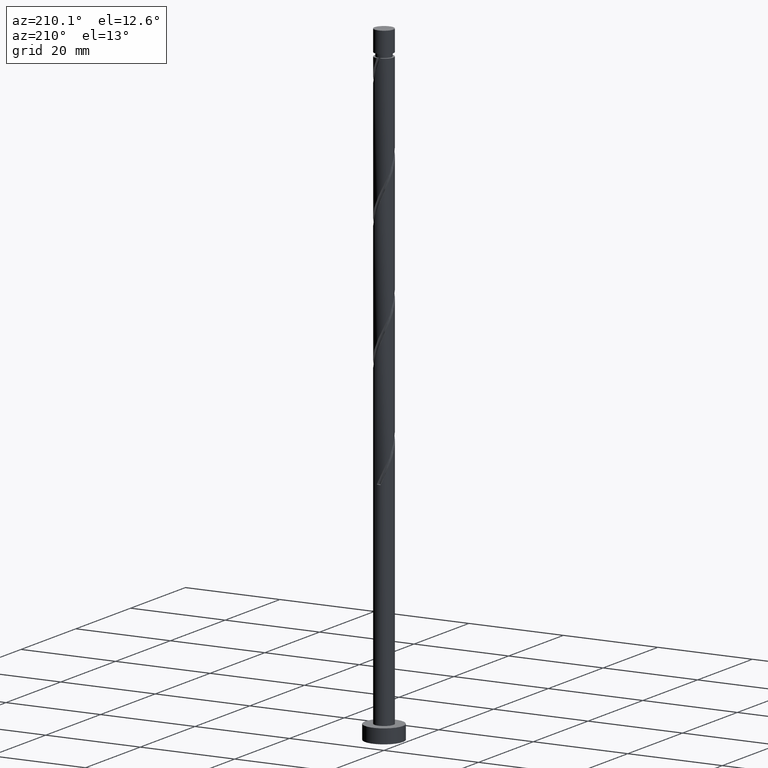
[diagram: clean part render]
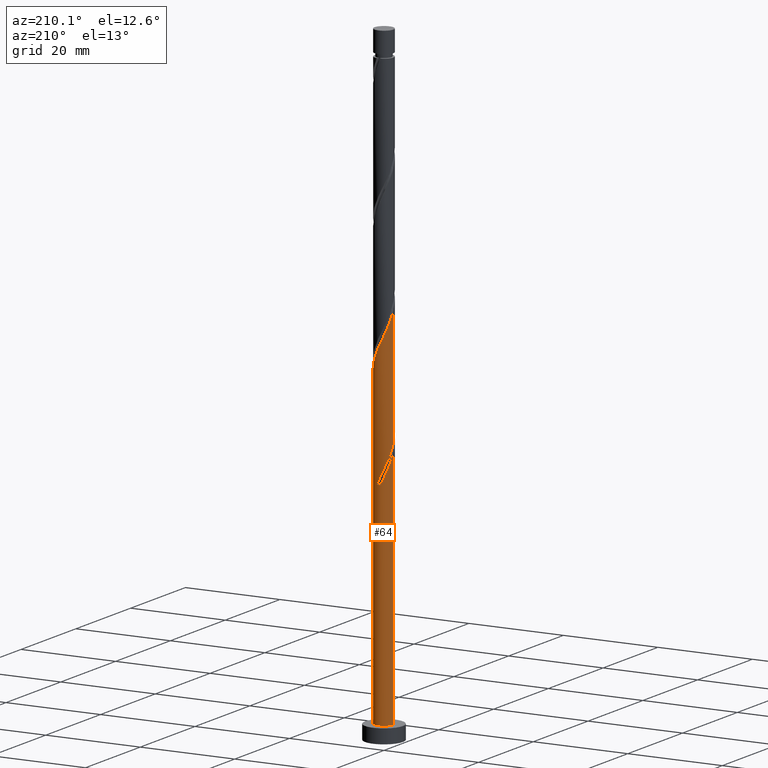
[diagram: same view with one face highlighted and labeled with its STEP entity id]
A machine part, auxiliary view. The second image highlights one B-rep face of the part: STEP entity #64.
In plain terms, the highlighted cylindrical surface (edge-blend (fillet) strip) has radius 2 mm, axis along (-0, -0, -1).
Its self-contained STEP definition (entity closure, byte-faithful):
#11 = EDGE_CURVE ( 'NONE', #1559, #1122, #277, .T. ) ;
#22 = CARTESIAN_POINT ( 'NONE',  ( -2.000000000000000000, 0.000000000000000000, 133.4499999999999886 ) ) ;
#27 = LINE ( 'NONE', #553, #57 ) ;
#46 = CARTESIAN_POINT ( 'NONE',  ( 1.883409435608319527, 0.6728810428757547868, 68.82072663073276431 ) ) ;
#57 = VECTOR ( 'NONE', #520, 1000.000000000000000 ) ;
#60 = CARTESIAN_POINT ( 'NONE',  ( -0.1161895186125001117, 2.017223038501450461, 74.27527208527821756 ) ) ;
#64 = ADVANCED_FACE ( 'NONE', ( #1151 ), #157, .T. ) ;
#67 = VERTEX_POINT ( 'NONE', #287 ) ;
#77 = CARTESIAN_POINT ( 'NONE',  ( -2.000000000000002665, -1.376027504721667048E-15, 80.69854487870459536 ) ) ;
#82 = VECTOR ( 'NONE', #288, 1000.000000000000000 ) ;
#97 = CARTESIAN_POINT ( 'NONE',  ( -1.948211798543802997, 0.4521844623765087778, 53.06315087315700652 ) ) ;
#102 = ORIENTED_EDGE ( 'NONE', *, *, #1654, .F. ) ;
#124 = VERTEX_POINT ( 'NONE', #77 ) ;
#134 = DIRECTION ( 'NONE',  ( -0.000000000000000000, -0.000000000000000000, -1.000000000000000000 ) ) ;
#156 = CARTESIAN_POINT ( 'NONE',  ( 0.000000000000000000, 0.000000000000000000, 48.21466602467216944 ) ) ;
#157 = CYLINDRICAL_SURFACE ( 'NONE', #1231, 2.000000000000000000 ) ;
#175 = CARTESIAN_POINT ( 'NONE',  ( 0.1161895186125005419, 2.017223038501447796, 48.82072663073276431 ) ) ;
#209 =( BOUNDED_CURVE ( )  B_SPLINE_CURVE ( 2, ( #753, #629, #1141, #622, #1657, #1635, #964, #593, #97, #602, #487 ),
 .UNSPECIFIED., .F., .T. ) 
 B_SPLINE_CURVE_WITH_KNOTS ( ( 3, 2, 2, 2, 2, 3 ),
 ( 0.000000000000000000, 0.01136363636363635181, 0.02272727272727270362, 0.03409090909090906063, 0.04545454545454540723, 0.05452521624175108578 ),
 .UNSPECIFIED. ) 
 CURVE ( )  GEOMETRIC_REPRESENTATION_ITEM ( )  RATIONAL_B_SPLINE_CURVE ( ( 0.9090909090909219392, 0.8998376744372241776, 0.9090909090909219392, 0.8998376744372241776, 0.9090909090909219392, 0.8998376744372241776, 0.9090909090909219392, 0.8998376744372241776, 0.9090909090909219392, 0.9017048011080018854, 0.9061101570135620120 ) ) 
 REPRESENTATION_ITEM ( '' )  );
#277 = LINE ( 'NONE', #530, #557 ) ;
#287 = CARTESIAN_POINT ( 'NONE',  ( -0.3979949748426480083, 1.960000000000002185, 48.21466602467215523 ) ) ;
#288 = DIRECTION ( 'NONE',  ( -0.000000000000000000, -0.000000000000000000, -1.000000000000000000 ) ) ;
#297 = CARTESIAN_POINT ( 'NONE',  ( -0.9928482695149674075, 1.759812803970227879, 51.24496905497519350 ) ) ;
#322 = CARTESIAN_POINT ( 'NONE',  ( -1.188337955536408641, 1.634179211325360814, 76.69951450952059702 ) ) ;
#340 = EDGE_LOOP ( 'NONE', ( #102, #1246, #572, #402, #844, #1641, #887, #1396 ) ) ;
#347 = DIRECTION ( 'NONE',  ( 1.000000000000000000, 0.000000000000000000, 0.000000000000000000 ) ) ;
#382 =( BOUNDED_CURVE ( )  B_SPLINE_CURVE ( 2, ( #1055, #432, #677, #934, #46, #699, #690, #1195, #939, #829, #567, #1347, #1465, #60, #1079, #445, #1469, #322, #820, #1575, #453, #953, #1479, #422, #1490 ),
 .UNSPECIFIED., .F., .T. ) 
 B_SPLINE_CURVE_WITH_KNOTS ( ( 3, 2, 2, 2, 2, 2, 2, 2, 2, 2, 2, 2, 3 ),
 ( 0.1795252162417512731, 0.1818181818181817677, 0.1931818181818182323, 0.2045454545454545858, 0.2159090909090909394, 0.2272727272727272929, 0.2386363636363636465, 0.2500000000000000000, 0.2613636363636363535, 0.2727272727272727071, 0.2840909090909090606, 0.2954545454545454142, 0.3045252162417513841 ),
 .UNSPECIFIED. ) 
 CURVE ( )  GEOMETRIC_REPRESENTATION_ITEM ( )  RATIONAL_B_SPLINE_CURVE ( ( 0.9061101570135622341, 0.9072237824201444534, 0.9090909090909219392, 0.8998376744372241776, 0.9090909090909219392, 0.8998376744372241776, 0.9090909090909219392, 0.8998376744372241776, 0.9090909090909219392, 0.8998376744372241776, 0.9090909090909219392, 0.8998376744372241776, 0.9090909090909219392, 0.8998376744372241776, 0.9090909090909219392, 0.8998376744372241776, 0.9090909090909219392, 0.8998376744372241776, 0.9090909090909219392, 0.8998376744372241776, 0.9090909090909219392, 0.8998376744372241776, 0.9090909090909219392, 0.9017048011080015524, 0.9061101570135623451 ) ) 
 REPRESENTATION_ITEM ( '' )  );
#402 = ORIENTED_EDGE ( 'NONE', *, *, #436, .F. ) ;
#405 = CARTESIAN_POINT ( 'NONE',  ( -1.220637884402354434, 1.584311571365224047, 51.85102966103578837 ) ) ;
#417 = CARTESIAN_POINT ( 'NONE',  ( -2.000000000000000000, 0.000000000000000000, 3.000000000000000000 ) ) ;
#422 = CARTESIAN_POINT ( 'NONE',  ( -2.000000000000003997, 0.2290578547702441514, 80.21258492573329590 ) ) ;
#432 = CARTESIAN_POINT ( 'NONE',  ( 2.000000000000002665, 0.05755105304764401158, 67.48730955008946353 ) ) ;
#436 = EDGE_CURVE ( 'NONE', #451, #866, #27, .T. ) ;
#445 = CARTESIAN_POINT ( 'NONE',  ( -0.6798004310727967514, 1.902776961498554353, 75.48739329739940729 ) ) ;
#451 = VERTEX_POINT ( 'NONE', #1332 ) ;
#453 = CARTESIAN_POINT ( 'NONE',  ( -1.741900447066340618, 0.9827425057002951991, 78.51769632770246687 ) ) ;
#462 = CIRCLE ( 'NONE', #565, 2.000000000000000000 ) ;
#487 = CARTESIAN_POINT ( 'NONE',  ( -2.000000000000002665, 9.789239150438384053E-15, 54.03187821203790264 ) ) ;
#498 = DIRECTION ( 'NONE',  ( 0.000000000000000000, 0.000000000000000000, 1.000000000000000000 ) ) ;
#520 = DIRECTION ( 'NONE',  ( -0.000000000000000000, -0.000000000000000000, -1.000000000000000000 ) ) ;
#530 = CARTESIAN_POINT ( 'NONE',  ( 2.000000000000000000, 2.449293598294706414E-16, 133.4499999999999886 ) ) ;
#539 = VERTEX_POINT ( 'NONE', #908 ) ;
#549 = CARTESIAN_POINT ( 'NONE',  ( 2.000000000000002665, 1.278808170148940589E-15, 67.36521154537125256 ) ) ;
#553 = CARTESIAN_POINT ( 'NONE',  ( -2.000000000000000000, 0.000000000000000000, 133.4499999999999886 ) ) ;
#557 = VECTOR ( 'NONE', #134, 1000.000000000000000 ) ;
#565 = AXIS2_PLACEMENT_3D ( 'NONE', #1135, #498, #347 ) ;
#567 = CARTESIAN_POINT ( 'NONE',  ( 0.7248413235775371666, 1.864029252891267197, 72.45709026709639033 ) ) ;
#572 = ORIENTED_EDGE ( 'NONE', *, *, #1303, .T. ) ;
#593 = CARTESIAN_POINT ( 'NONE',  ( -1.883197487972274153, 0.7322950311120157707, 52.45709026709639033 ) ) ;
#602 = CARTESIAN_POINT ( 'NONE',  ( -2.000000000000002220, 0.2290578547702515066, 53.54591825906661029 ) ) ;
#622 = CARTESIAN_POINT ( 'NONE',  ( -1.188337955536408641, 1.634179211325360814, 50.03284784285396825 ) ) ;
#629 = CARTESIAN_POINT ( 'NONE',  ( -0.6798004310727967514, 1.902776961498554353, 48.82072663073275720 ) ) ;
#646 = CARTESIAN_POINT ( 'NONE',  ( -0.1703224295138024702, 1.992734370156875157, 49.42678723679335917 ) ) ;
#659 = DIRECTION ( 'NONE',  ( 0.000000000000000000, -0.000000000000000000, -1.000000000000000000 ) ) ;
#677 = CARTESIAN_POINT ( 'NONE',  ( 1.996690616564942733, 0.1150068768444765244, 67.60860541861153195 ) ) ;
#690 = CARTESIAN_POINT ( 'NONE',  ( 1.617545623245914443, 1.176242388590887700, 70.03284784285398246 ) ) ;
#699 = CARTESIAN_POINT ( 'NONE',  ( 1.786663747202085206, 0.9436744384215541848, 69.42678723679337338 ) ) ;
#753 = CARTESIAN_POINT ( 'NONE',  ( -0.3979949748426480083, 1.960000000000002185, 48.21466602467215523 ) ) ;
#778 = CARTESIAN_POINT ( 'NONE',  ( 0.3979949748426487299, 1.959999999999999964, 48.21466602467215523 ) ) ;
#799 = CARTESIAN_POINT ( 'NONE',  ( -1.786663747202082320, 0.9436744384215540737, 53.66921147921762980 ) ) ;
#820 = CARTESIAN_POINT ( 'NONE',  ( -1.394470680848407307, 1.433684595806968165, 77.30557511558124872 ) ) ;
#829 = CARTESIAN_POINT ( 'NONE',  ( 0.9928482695149681847, 1.759812803970230322, 71.85102966103578126 ) ) ;
#844 = ORIENTED_EDGE ( 'NONE', *, *, #1430, .F. ) ;
#866 = VERTEX_POINT ( 'NONE', #417 ) ;
#887 = ORIENTED_EDGE ( 'NONE', *, *, #1000, .F. ) ;
#908 = CARTESIAN_POINT ( 'NONE',  ( -2.000000000000000000, -3.694334713763628715E-15, 55.73078717063971510 ) ) ;
#912 = CARTESIAN_POINT ( 'NONE',  ( -0.4568343776401055933, 1.968245701812301407, 50.03284784285395403 ) ) ;
#921 = CARTESIAN_POINT ( 'NONE',  ( -1.617545623245911779, 1.176242388590887256, 53.06315087315700652 ) ) ;
#934 = CARTESIAN_POINT ( 'NONE',  ( 1.980155124014553403, 0.4020876473299550558, 68.21466602467214102 ) ) ;
#939 = CARTESIAN_POINT ( 'NONE',  ( 1.220637884402355988, 1.584311571365226046, 71.24496905497520061 ) ) ;
#953 = CARTESIAN_POINT ( 'NONE',  ( -1.883197487972274153, 0.7322950311120157707, 79.12375693376307595 ) ) ;
#964 = CARTESIAN_POINT ( 'NONE',  ( -1.741900447066340618, 0.9827425057002951991, 51.85102966103579547 ) ) ;
#1000 = EDGE_CURVE ( 'NONE', #539, #1069, #1240, .T. ) ;
#1022 = DIRECTION ( 'NONE',  ( -0.000000000000000000, -0.000000000000000000, -1.000000000000000000 ) ) ;
#1033 = CARTESIAN_POINT ( 'NONE',  ( -0.7248413235775362784, 1.864029252891264310, 50.63890844891457732 ) ) ;
#1055 = CARTESIAN_POINT ( 'NONE',  ( 2.000000000000002665, 1.278808170148940786E-15, 67.36521154537125256 ) ) ;
#1069 = VERTEX_POINT ( 'NONE', #778 ) ;
#1076 = EDGE_CURVE ( 'NONE', #124, #539, #1170, .T. ) ;
#1078 = CARTESIAN_POINT ( 'NONE',  ( 2.000000000000000000, 2.449293598294706414E-16, 3.000000000000000000 ) ) ;
#1079 = CARTESIAN_POINT ( 'NONE',  ( -0.3979949748426481193, 1.960000000000002851, 74.88133269133881242 ) ) ;
#1098 = CIRCLE ( 'NONE', #1538, 2.000000000000000000 ) ;
#1122 = VERTEX_POINT ( 'NONE', #1078 ) ;
#1135 = CARTESIAN_POINT ( 'NONE',  ( 0.000000000000000000, 0.000000000000000000, 3.000000000000000000 ) ) ;
#1141 = CARTESIAN_POINT ( 'NONE',  ( -0.9340691933046029183, 1.768478086411957806, 49.42678723679337338 ) ) ;
#1151 = FACE_OUTER_BOUND ( 'NONE', #340, .T. ) ;
#1170 = LINE ( 'NONE', #22, #82 ) ;
#1175 = DIRECTION ( 'NONE',  ( -1.000000000000000000, 0.000000000000000000, 0.000000000000000000 ) ) ;
#1195 = CARTESIAN_POINT ( 'NONE',  ( 1.448427499289744569, 1.408810338760220437, 70.63890844891454890 ) ) ;
#1231 = AXIS2_PLACEMENT_3D ( 'NONE', #1295, #1022, #1282 ) ;
#1240 =( BOUNDED_CURVE ( )  B_SPLINE_CURVE ( 2, ( #1579, #1443, #1450, #1418, #1572, #799, #921, #1325, #405, #297, #1033, #912, #646, #175, #1296 ),
 .UNSPECIFIED., .F., .T. ) 
 B_SPLINE_CURVE_WITH_KNOTS ( ( 3, 2, 2, 2, 2, 2, 2, 3 ),
 ( 0.9295252162417512176, 0.9318181818181817677, 0.9431818181818182323, 0.9545454545454545858, 0.9659090909090909394, 0.9772727272727272929, 0.9886363636363636465, 1.000000000000000000 ),
 .UNSPECIFIED. ) 
 CURVE ( )  GEOMETRIC_REPRESENTATION_ITEM ( )  RATIONAL_B_SPLINE_CURVE ( ( 0.9061101570135567940, 0.9072237824201390133, 0.9090909090909164991, 0.8998376744372188485, 0.9090909090909164991, 0.8998376744372188485, 0.9090909090909164991, 0.8998376744372188485, 0.9090909090909164991, 0.8998376744372188485, 0.9090909090909164991, 0.8998376744372188485, 0.9090909090909164991, 0.8998376744372188485, 0.9090909090909164991 ) ) 
 REPRESENTATION_ITEM ( '' )  );
#1246 = ORIENTED_EDGE ( 'NONE', *, *, #11, .T. ) ;
#1282 = DIRECTION ( 'NONE',  ( -1.000000000000000000, 0.000000000000000000, 0.000000000000000000 ) ) ;
#1295 = CARTESIAN_POINT ( 'NONE',  ( 0.000000000000000000, 0.000000000000000000, 133.4499999999999886 ) ) ;
#1296 = CARTESIAN_POINT ( 'NONE',  ( 0.3979949748426487299, 1.959999999999999964, 48.21466602467215523 ) ) ;
#1303 = EDGE_CURVE ( 'NONE', #1122, #866, #462, .T. ) ;
#1325 = CARTESIAN_POINT ( 'NONE',  ( -1.448427499289741460, 1.408810338760219993, 52.45709026709639744 ) ) ;
#1332 = CARTESIAN_POINT ( 'NONE',  ( -2.000000000000002665, 9.789239150438384053E-15, 54.03187821203790264 ) ) ;
#1347 = CARTESIAN_POINT ( 'NONE',  ( 0.4568343776401065925, 1.968245701812303405, 73.06315087315699941 ) ) ;
#1396 = ORIENTED_EDGE ( 'NONE', *, *, #1076, .F. ) ;
#1418 = CARTESIAN_POINT ( 'NONE',  ( -1.980155124014551182, 0.4020876473299552778, 54.88133269133882663 ) ) ;
#1430 = EDGE_CURVE ( 'NONE', #67, #451, #209, .T. ) ;
#1443 = CARTESIAN_POINT ( 'NONE',  ( -2.000000000000000000, 0.05755105304764320667, 55.60868916592149702 ) ) ;
#1450 = CARTESIAN_POINT ( 'NONE',  ( -1.996690616564939846, 0.1150068768444770934, 55.48739329739943571 ) ) ;
#1465 = CARTESIAN_POINT ( 'NONE',  ( 0.1703224295138031641, 1.992734370156877821, 73.66921147921760848 ) ) ;
#1469 = CARTESIAN_POINT ( 'NONE',  ( -0.9340691933046029183, 1.768478086411957806, 76.09345390346004478 ) ) ;
#1479 = CARTESIAN_POINT ( 'NONE',  ( -1.948211798543802997, 0.4521844623765087778, 79.72981753982368502 ) ) ;
#1490 = CARTESIAN_POINT ( 'NONE',  ( -2.000000000000002665, -1.376027504721667048E-15, 80.69854487870459536 ) ) ;
#1505 = EDGE_CURVE ( 'NONE', #67, #1069, #1098, .T. ) ;
#1538 = AXIS2_PLACEMENT_3D ( 'NONE', #156, #659, #1175 ) ;
#1559 = VERTEX_POINT ( 'NONE', #549 ) ;
#1572 = CARTESIAN_POINT ( 'NONE',  ( -1.883409435608316418, 0.6728810428757542317, 54.27527208527821045 ) ) ;
#1575 = CARTESIAN_POINT ( 'NONE',  ( -1.600603406160406639, 1.233189980288574183, 77.91163572164184359 ) ) ;
#1579 = CARTESIAN_POINT ( 'NONE',  ( -2.000000000000000000, -3.694334713763628715E-15, 55.73078717063971510 ) ) ;
#1635 = CARTESIAN_POINT ( 'NONE',  ( -1.600603406160406639, 1.233189980288574183, 51.24496905497518640 ) ) ;
#1641 = ORIENTED_EDGE ( 'NONE', *, *, #1505, .T. ) ;
#1654 = EDGE_CURVE ( 'NONE', #1559, #124, #382, .T. ) ;
#1657 = CARTESIAN_POINT ( 'NONE',  ( -1.394470680848407307, 1.433684595806968165, 50.63890844891458443 ) ) ;